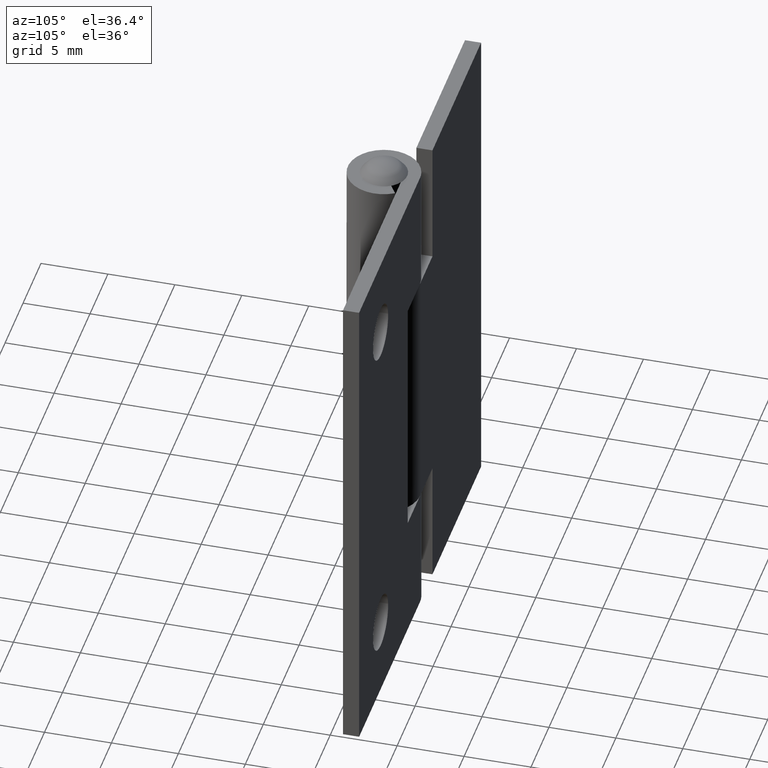
[diagram: clean part render]
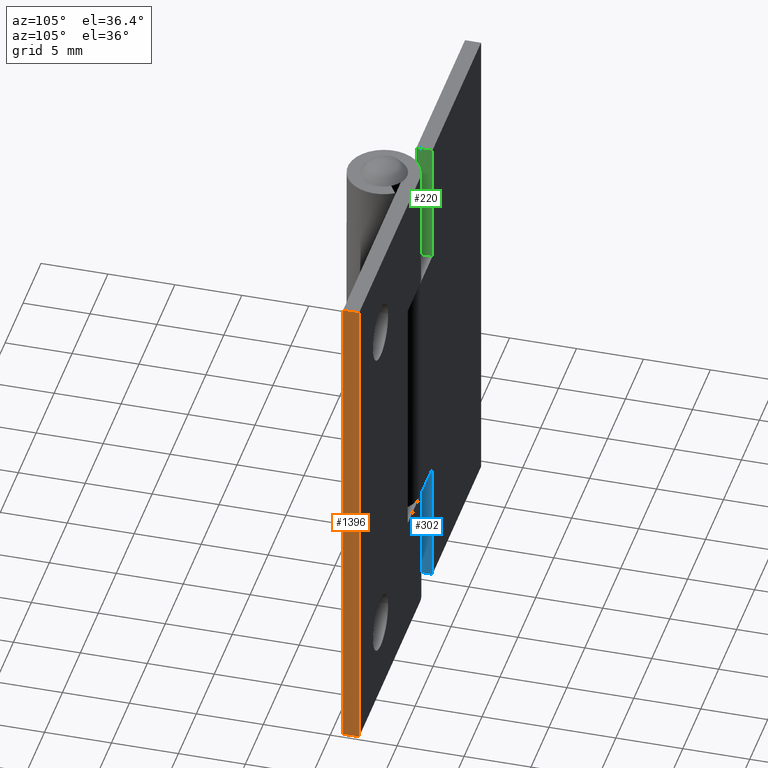
[diagram: same view with three faces highlighted in distinct colors, each labeled with its STEP entity id]
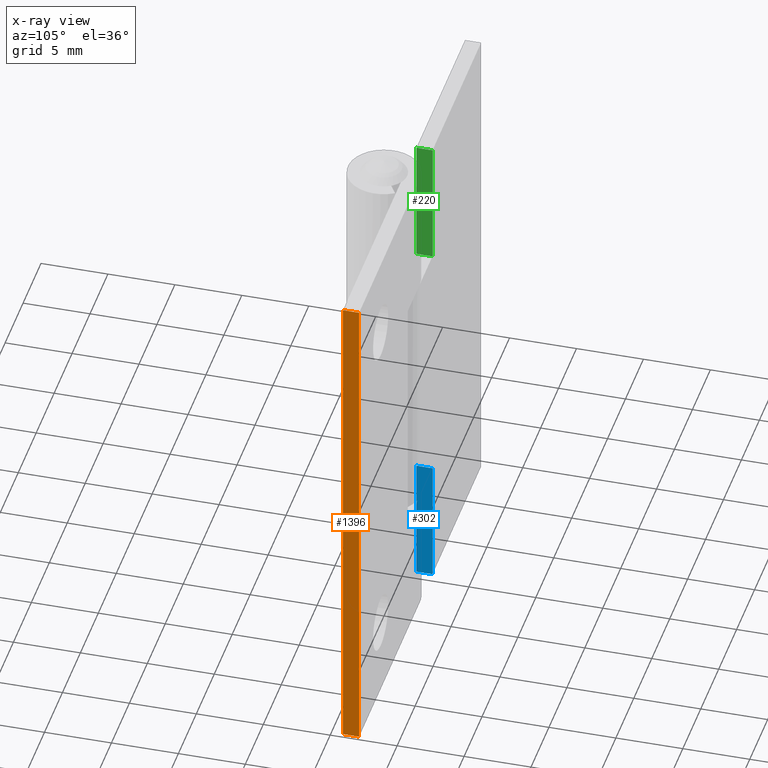
[diagram: x-ray of the same camera — body ghosted, the three highlighted faces saturated]
A machine part, auxiliary view with three faces highlighted in distinct colors.
The next image is the same camera in x-ray (body ghosted, the three faces saturated) — at least one of them is partly hidden behind the body in this view.
Their STEP definitions:

[orange] entity #1396 — the highlighted face is a freeform B-spline surface patch.
#1064=CARTESIAN_POINT('',(17.0,1.499999000000000,0.0));
#1065=VERTEX_POINT('',#1064);
#1071=CARTESIAN_POINT('',(17.0,1.499999000000000,38.0));
#1072=VERTEX_POINT('',#1071);
#1073=CARTESIAN_POINT('',(17.0,1.499999000000000,38.0));
#1074=CARTESIAN_POINT('',(17.0,1.499999000000000,0.0));
#1075=QUASI_UNIFORM_CURVE('',1,(#1073,#1074),.UNSPECIFIED.,.F.,.U.);
#1076=EDGE_CURVE('',#1072,#1065,#1075,.T.);
#1292=CARTESIAN_POINT('',(17.0,2.700000000000000,0.0));
#1293=VERTEX_POINT('',#1292);
#1299=CARTESIAN_POINT('',(17.0,2.700000000000000,0.0));
#1300=CARTESIAN_POINT('',(17.0,1.499999000000000,0.0));
#1301=QUASI_UNIFORM_CURVE('',1,(#1299,#1300),.UNSPECIFIED.,.F.,.U.);
#1302=EDGE_CURVE('',#1293,#1065,#1301,.T.);
#1366=CARTESIAN_POINT('',(17.0,2.700000000000000,38.0));
#1367=VERTEX_POINT('',#1366);
#1368=CARTESIAN_POINT('',(17.0,2.700000000000000,38.0));
#1369=CARTESIAN_POINT('',(17.0,1.499999000000000,38.0));
#1370=QUASI_UNIFORM_CURVE('',1,(#1368,#1369),.UNSPECIFIED.,.F.,.U.);
#1371=EDGE_CURVE('',#1367,#1072,#1370,.T.);
#1381=CARTESIAN_POINT('',(17.0,1.440058952375834,39.898099926348621));
#1382=CARTESIAN_POINT('',(17.0,1.440058952375834,-1.898100945588053));
#1383=CARTESIAN_POINT('',(17.0,2.759940079810700,39.898099926348621));
#1384=CARTESIAN_POINT('',(17.0,2.759940079810700,-1.898100945588053));
#1385=B_SPLINE_SURFACE_WITH_KNOTS('',1,1,((#1381,#1383),(#1382,#1384)),.UNSPECIFIED.,.F.,.F.,.U.,(2,2),(2,2),(0.0,41.796200871936684),(0.041708334948495,0.958291687403247),.UNSPECIFIED.);
#1386=ORIENTED_EDGE('',*,*,#1302,.F.);
#1387=CARTESIAN_POINT('',(17.0,2.700000000000000,38.0));
#1388=CARTESIAN_POINT('',(17.0,2.700000000000000,0.0));
#1389=QUASI_UNIFORM_CURVE('',1,(#1387,#1388),.UNSPECIFIED.,.F.,.U.);
#1390=EDGE_CURVE('',#1367,#1293,#1389,.T.);
#1391=ORIENTED_EDGE('',*,*,#1390,.F.);
#1392=ORIENTED_EDGE('',*,*,#1371,.T.);
#1393=ORIENTED_EDGE('',*,*,#1076,.T.);
#1394=EDGE_LOOP('',(#1386,#1391,#1392,#1393));
#1395=FACE_OUTER_BOUND('',#1394,.T.);
#1396=ADVANCED_FACE('',(#1395),#1385,.T.);

[blue] entity #302 — the highlighted face is a freeform B-spline surface patch.
#170=CARTESIAN_POINT('',(-3.450000000000105,1.499999000000000,0.0));
#171=VERTEX_POINT('',#170);
#177=CARTESIAN_POINT('',(-3.450000000000105,1.499998999999974,9.500000000000000));
#178=VERTEX_POINT('',#177);
#179=CARTESIAN_POINT('',(-3.450000000000105,1.499998999999974,9.500000000000000));
#180=CARTESIAN_POINT('',(-3.450000000000105,1.499999000000000,0.0));
#181=QUASI_UNIFORM_CURVE('',1,(#179,#180),.UNSPECIFIED.,.F.,.U.);
#182=EDGE_CURVE('',#178,#171,#181,.T.);
#275=CARTESIAN_POINT('',(-3.450000000000105,1.440058952375806,9.974524981587155));
#276=CARTESIAN_POINT('',(-3.450000000000105,1.440058952375806,-0.474525236397013));
#277=CARTESIAN_POINT('',(-3.450000000000105,2.759940079810739,9.974524981587155));
#278=CARTESIAN_POINT('',(-3.450000000000105,2.759940079810739,-0.474525236397013));
#279=B_SPLINE_SURFACE_WITH_KNOTS('',1,1,((#275,#277),(#276,#278)),.UNSPECIFIED.,.F.,.F.,.U.,(2,2),(2,2),(0.0,10.449050217984171),(0.041708334948495,0.958291687403247),.UNSPECIFIED.);
#280=ORIENTED_EDGE('',*,*,#182,.T.);
#281=CARTESIAN_POINT('',(-3.450000000000105,2.700000000000035,0.0));
#282=VERTEX_POINT('',#281);
#283=CARTESIAN_POINT('',(-3.450000000000105,1.499999000000000,0.0));
#284=CARTESIAN_POINT('',(-3.450000000000105,2.700000000000035,0.0));
#285=QUASI_UNIFORM_CURVE('',1,(#283,#284),.UNSPECIFIED.,.F.,.U.);
#286=EDGE_CURVE('',#171,#282,#285,.T.);
#287=ORIENTED_EDGE('',*,*,#286,.T.);
#288=CARTESIAN_POINT('',(-3.450000000000105,2.700000000000035,9.500000000000000));
#289=VERTEX_POINT('',#288);
#290=CARTESIAN_POINT('',(-3.450000000000105,2.700000000000035,9.500000000000000));
#291=CARTESIAN_POINT('',(-3.450000000000105,2.700000000000035,0.0));
#292=QUASI_UNIFORM_CURVE('',1,(#290,#291),.UNSPECIFIED.,.F.,.U.);
#293=EDGE_CURVE('',#289,#282,#292,.T.);
#294=ORIENTED_EDGE('',*,*,#293,.F.);
#295=CARTESIAN_POINT('',(-3.450000000000105,1.499998999999974,9.500000000000000));
#296=CARTESIAN_POINT('',(-3.450000000000105,2.700000000000035,9.500000000000000));
#297=QUASI_UNIFORM_CURVE('',1,(#295,#296),.UNSPECIFIED.,.F.,.U.);
#298=EDGE_CURVE('',#178,#289,#297,.T.);
#299=ORIENTED_EDGE('',*,*,#298,.F.);
#300=EDGE_LOOP('',(#280,#287,#294,#299));
#301=FACE_OUTER_BOUND('',#300,.T.);
#302=ADVANCED_FACE('',(#301),#279,.T.);

[green] entity #220 — the highlighted face is a freeform B-spline surface patch.
#142=CARTESIAN_POINT('',(-3.450000000000105,1.499998999999974,28.500000000000000));
#143=VERTEX_POINT('',#142);
#149=CARTESIAN_POINT('',(-3.450000000000105,1.499998999999974,38.0));
#150=VERTEX_POINT('',#149);
#151=CARTESIAN_POINT('',(-3.450000000000105,1.499998999999974,28.500000000000000));
#152=CARTESIAN_POINT('',(-3.450000000000105,1.499998999999974,38.0));
#153=QUASI_UNIFORM_CURVE('',1,(#151,#152),.UNSPECIFIED.,.F.,.U.);
#154=EDGE_CURVE('',#143,#150,#153,.T.);
#193=CARTESIAN_POINT('',(-3.450000000000105,1.440058952375805,28.025475018412841));
#194=CARTESIAN_POINT('',(-3.450000000000105,1.440058952375805,38.474525236397021));
#195=CARTESIAN_POINT('',(-3.450000000000105,2.759940079810739,28.025475018412841));
#196=CARTESIAN_POINT('',(-3.450000000000105,2.759940079810739,38.474525236397021));
#197=B_SPLINE_SURFACE_WITH_KNOTS('',1,1,((#193,#195),(#194,#196)),.UNSPECIFIED.,.F.,.F.,.U.,(2,2),(2,2),(0.0,10.449050217984180),(0.041708334948495,0.958291687403247),.UNSPECIFIED.);
#198=CARTESIAN_POINT('',(-3.450000000000105,2.700000000000035,28.500000000000000));
#199=VERTEX_POINT('',#198);
#200=CARTESIAN_POINT('',(-3.450000000000105,1.499998999999974,28.500000000000000));
#201=CARTESIAN_POINT('',(-3.450000000000105,2.700000000000035,28.500000000000000));
#202=QUASI_UNIFORM_CURVE('',1,(#200,#201),.UNSPECIFIED.,.F.,.U.);
#203=EDGE_CURVE('',#143,#199,#202,.T.);
#204=ORIENTED_EDGE('',*,*,#203,.T.);
#205=CARTESIAN_POINT('',(-3.450000000000105,2.700000000000000,38.0));
#206=VERTEX_POINT('',#205);
#207=CARTESIAN_POINT('',(-3.450000000000105,2.700000000000035,28.500000000000000));
#208=CARTESIAN_POINT('',(-3.450000000000105,2.700000000000000,38.0));
#209=QUASI_UNIFORM_CURVE('',1,(#207,#208),.UNSPECIFIED.,.F.,.U.);
#210=EDGE_CURVE('',#199,#206,#209,.T.);
#211=ORIENTED_EDGE('',*,*,#210,.T.);
#212=CARTESIAN_POINT('',(-3.450000000000105,1.499998999999974,38.0));
#213=CARTESIAN_POINT('',(-3.450000000000105,2.700000000000000,38.0));
#214=QUASI_UNIFORM_CURVE('',1,(#212,#213),.UNSPECIFIED.,.F.,.U.);
#215=EDGE_CURVE('',#150,#206,#214,.T.);
#216=ORIENTED_EDGE('',*,*,#215,.F.);
#217=ORIENTED_EDGE('',*,*,#154,.F.);
#218=EDGE_LOOP('',(#204,#211,#216,#217));
#219=FACE_OUTER_BOUND('',#218,.T.);
#220=ADVANCED_FACE('',(#219),#197,.F.);